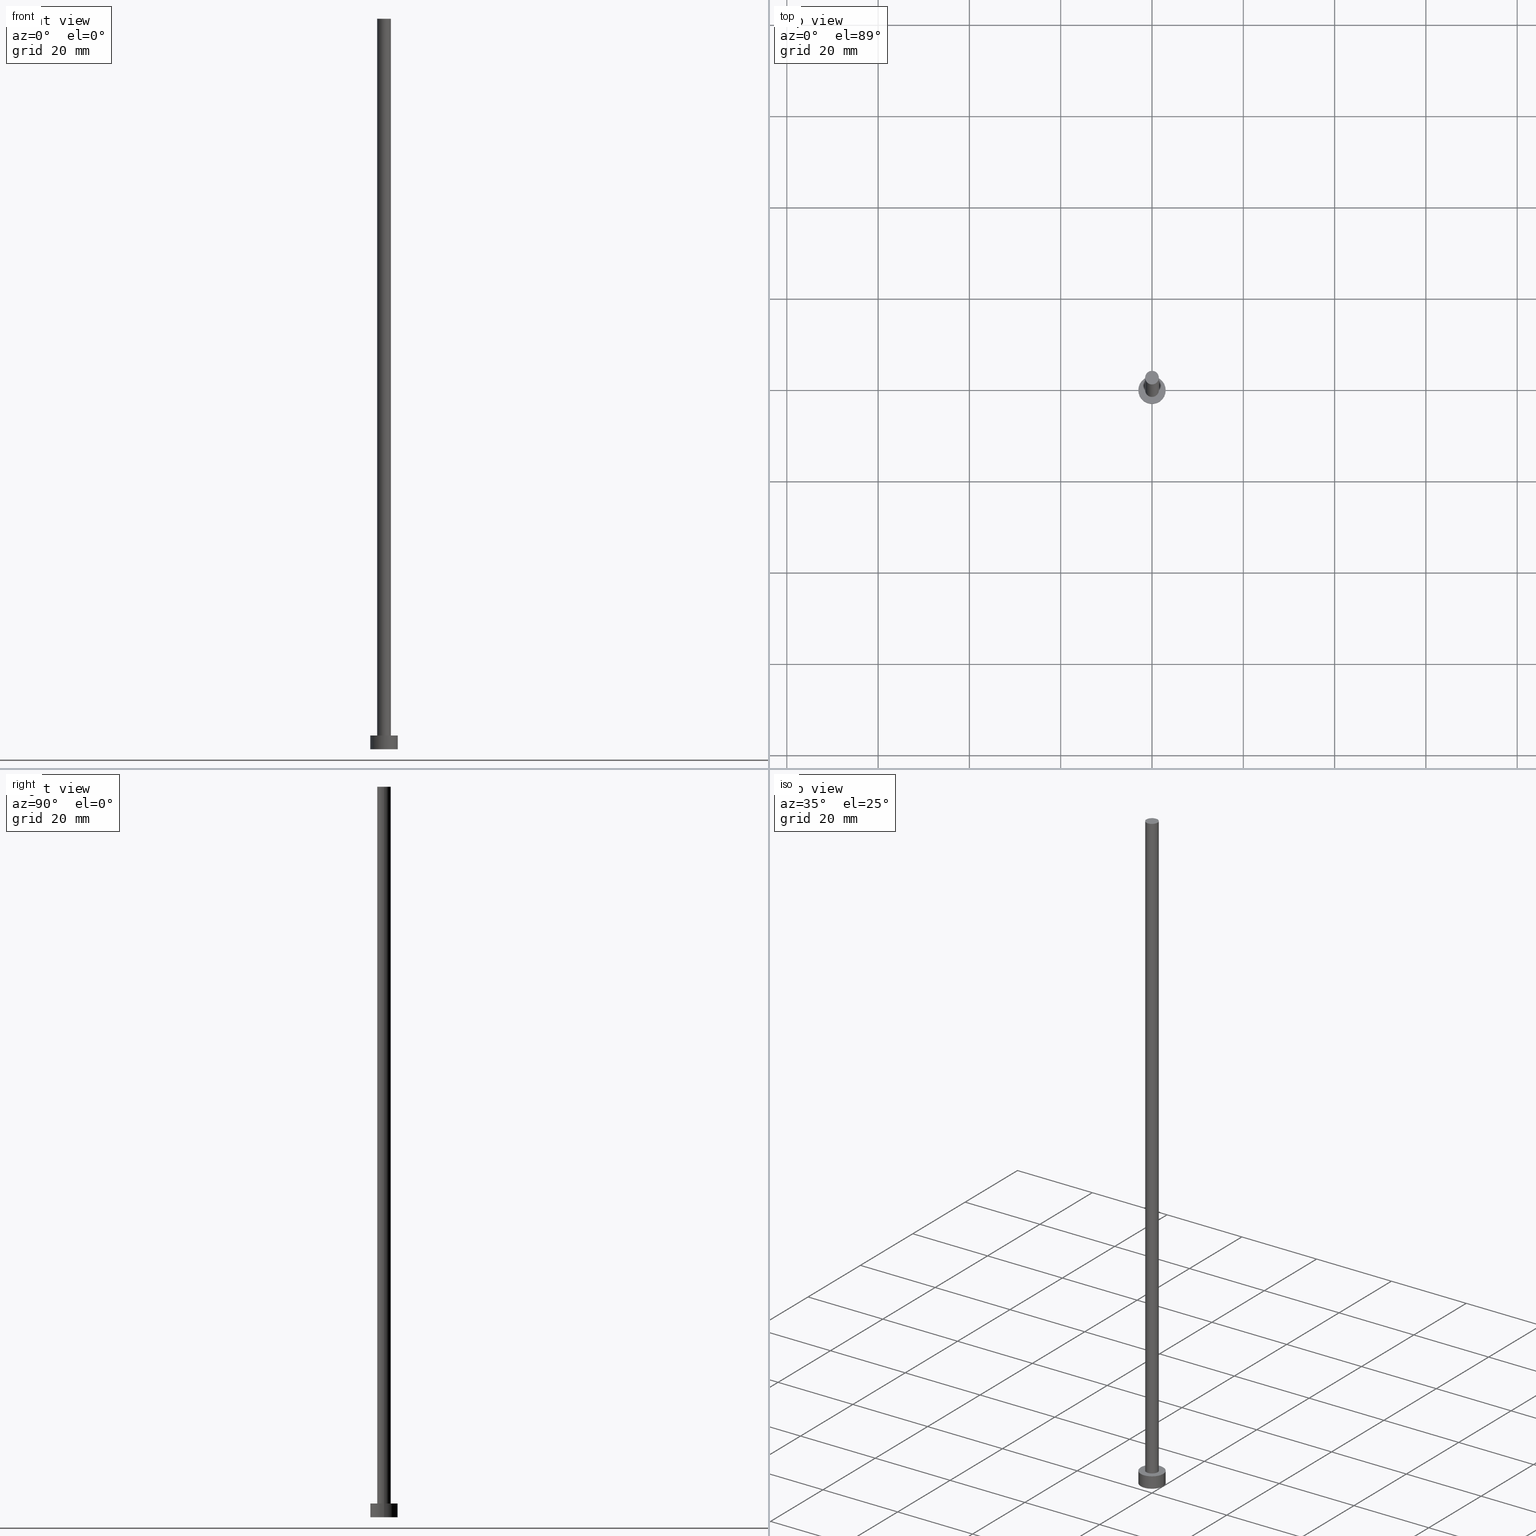
[diagram: canonical four-view strip — front | top / right | iso, engineering-drawing reading convention]
A machine part, canonical four-view strip (front | top / right | iso — engineering-drawing reading convention). The complete STEP part file that produces these views, byte-faithful:
ISO-10303-21;
HEADER;
FILE_DESCRIPTION (( 'STEP AP203' ),
    '1' );
FILE_NAME ('cdf7.STEP',
    '2023-02-13T17:02:47',
    ( '' ),
    ( '' ),
    'SwSTEP 2.0',
    'SolidWorks 2019',
    '' );
FILE_SCHEMA (( 'CONFIG_CONTROL_DESIGN' ));
ENDSEC;

DATA;
#1 = COORDINATED_UNIVERSAL_TIME_OFFSET ( 1, 0, .AHEAD. ) ;
#2 = DIRECTION ( 'NONE',  ( -1.000000000000000000, 0.000000000000000000, 0.000000000000000000 ) ) ;
#3 = CALENDAR_DATE ( 2023, 13, 2 ) ;
#4 = CARTESIAN_POINT ( 'NONE',  ( 0.000000000000000000, 0.000000000000000000, 160.0000000000000000 ) ) ;
#5 = AXIS2_PLACEMENT_3D ( 'NONE', #162, #208, #60 ) ;
#6 = DIRECTION ( 'NONE',  ( 1.000000000000000000, 0.000000000000000000, 0.000000000000000000 ) ) ;
#7 = CYLINDRICAL_SURFACE ( 'NONE', #25, 1.500000000000000222 ) ;
#8 = SECURITY_CLASSIFICATION ( '', '', #165 ) ;
#9 = ADVANCED_FACE ( 'NONE', ( #73 ), #232, .T. ) ;
#10 = VERTEX_POINT ( 'NONE', #160 ) ;
#11 = SHAPE_DEFINITION_REPRESENTATION ( #206, #193 ) ;
#12 = AXIS2_PLACEMENT_3D ( 'NONE', #28, #126, #79 ) ;
#13 = ORIENTED_EDGE ( 'NONE', *, *, #221, .F. ) ;
#14 = EDGE_CURVE ( 'NONE', #197, #10, #119, .T. ) ;
#15 = CC_DESIGN_SECURITY_CLASSIFICATION ( #8, ( #109 ) ) ;
#16 = ORIENTED_EDGE ( 'NONE', *, *, #20, .T. ) ;
#17 =( LENGTH_UNIT ( ) NAMED_UNIT ( * ) SI_UNIT ( .MILLI., .METRE. ) );
#18 = ORIENTED_EDGE ( 'NONE', *, *, #20, .F. ) ;
#19 = UNCERTAINTY_MEASURE_WITH_UNIT (LENGTH_MEASURE( 1.000000000000000082E-05 ), #17, 'distance_accuracy_value', 'NONE');
#20 = EDGE_CURVE ( 'NONE', #10, #197, #220, .T. ) ;
#21 = PERSON_AND_ORGANIZATION_ROLE ( 'creator' ) ;
#22 = CALENDAR_DATE ( 2023, 13, 2 ) ;
#23 = CARTESIAN_POINT ( 'NONE',  ( 0.000000000000000000, 0.000000000000000000, 3.000000000000000000 ) ) ;
#24 = EDGE_CURVE ( 'NONE', #194, #92, #237, .T. ) ;
#25 = AXIS2_PLACEMENT_3D ( 'NONE', #58, #87, #2 ) ;
#26 = DIRECTION ( 'NONE',  ( -0.000000000000000000, -0.000000000000000000, -1.000000000000000000 ) ) ;
#27 = APPROVAL_ROLE ( '' ) ;
#28 = CARTESIAN_POINT ( 'NONE',  ( 0.000000000000000000, 0.000000000000000000, 0.000000000000000000 ) ) ;
#29 = DIRECTION ( 'NONE',  ( -1.000000000000000000, 0.000000000000000000, 0.000000000000000000 ) ) ;
#30 = LOCAL_TIME ( 18, 2, 47.00000000000000000, #84 ) ;
#31 = ADVANCED_FACE ( 'NONE', ( #255 ), #125, .T. ) ;
#32 =( NAMED_UNIT ( * ) PLANE_ANGLE_UNIT ( ) SI_UNIT ( $, .RADIAN. ) );
#33 =( GEOMETRIC_REPRESENTATION_CONTEXT ( 3 ) GLOBAL_UNCERTAINTY_ASSIGNED_CONTEXT ( ( #19 ) ) GLOBAL_UNIT_ASSIGNED_CONTEXT ( ( #17, #32, #89 ) ) REPRESENTATION_CONTEXT ( 'NONE', 'WORKASPACE' ) );
#34 = ORIENTED_EDGE ( 'NONE', *, *, #163, .F. ) ;
#35 = ORIENTED_EDGE ( 'NONE', *, *, #24, .F. ) ;
#36 = VECTOR ( 'NONE', #101, 1000.000000000000000 ) ;
#37 = APPLICATION_CONTEXT ( 'configuration controlled 3d designs of mechanical parts and assemblies' ) ;
#38 = DIRECTION ( 'NONE',  ( 0.000000000000000000, 0.000000000000000000, 1.000000000000000000 ) ) ;
#39 = DIRECTION ( 'NONE',  ( 1.000000000000000000, 0.000000000000000000, 0.000000000000000000 ) ) ;
#40 = PERSON_AND_ORGANIZATION ( #53, #158 ) ;
#41 = VECTOR ( 'NONE', #166, 1000.000000000000000 ) ;
#42 = PRODUCT_DEFINITION ( 'NEZN�M�', '', #109, #52 ) ;
#43 = CARTESIAN_POINT ( 'NONE',  ( 1.500000000000000222, 1.836970198721030181E-16, 160.0000000000000000 ) ) ;
#44 = CC_DESIGN_APPROVAL ( #198, ( #8 ) ) ;
#45 = CALENDAR_DATE ( 2023, 13, 2 ) ;
#46 = DIRECTION ( 'NONE',  ( 1.000000000000000000, 0.000000000000000000, -0.000000000000000000 ) ) ;
#47 = PLANE ( 'NONE',  #188 ) ;
#48 = EDGE_LOOP ( 'NONE', ( #153, #152, #51, #218 ) ) ;
#49 = DIRECTION ( 'NONE',  ( 1.000000000000000000, 0.000000000000000000, 0.000000000000000000 ) ) ;
#50 = EDGE_LOOP ( 'NONE', ( #95, #93, #233, #134 ) ) ;
#51 = ORIENTED_EDGE ( 'NONE', *, *, #67, .T. ) ;
#52 = DESIGN_CONTEXT ( 'detailed design', #116, 'design' ) ;
#53 = PERSON ( 'NEUR�EN�', 'NEUR�EN�', 'NEUR�EN�', ('NEUR�EN�'), ('NEUR�EN�'), ('NEUR�EN�') ) ;
#54 = DIRECTION ( 'NONE',  ( -1.000000000000000000, 0.000000000000000000, 0.000000000000000000 ) ) ;
#55 = PERSON_AND_ORGANIZATION_ROLE ( 'creator' ) ;
#56 = CARTESIAN_POINT ( 'NONE',  ( 0.000000000000000000, 0.000000000000000000, 0.000000000000000000 ) ) ;
#57 = APPROVAL_DATE_TIME ( #108, #159 ) ;
#58 = CARTESIAN_POINT ( 'NONE',  ( 0.000000000000000000, 0.000000000000000000, 160.0000000000000000 ) ) ;
#59 = PERSON_AND_ORGANIZATION ( #53, #158 ) ;
#60 = DIRECTION ( 'NONE',  ( 1.000000000000000000, 0.000000000000000000, 0.000000000000000000 ) ) ;
#61 = APPLICATION_PROTOCOL_DEFINITION ( 'international standard', 'config_control_design', 1994, #116 ) ;
#62 = AXIS2_PLACEMENT_3D ( 'NONE', #174, #74, #49 ) ;
#63 = PLANE ( 'NONE',  #164 ) ;
#64 = CC_DESIGN_APPROVAL ( #150, ( #109 ) ) ;
#65 = CARTESIAN_POINT ( 'NONE',  ( -3.000000000000000444, 0.000000000000000000, 3.000000000000000000 ) ) ;
#66 = VERTEX_POINT ( 'NONE', #100 ) ;
#67 = EDGE_CURVE ( 'NONE', #115, #235, #180, .T. ) ;
#68 = AXIS2_PLACEMENT_3D ( 'NONE', #56, #187, #140 ) ;
#69 = AXIS2_PLACEMENT_3D ( 'NONE', #127, #190, #6 ) ;
#70 = EDGE_LOOP ( 'NONE', ( #18, #133 ) ) ;
#71 = LOCAL_TIME ( 18, 2, 47.00000000000000000, #1 ) ;
#72 = CC_DESIGN_PERSON_AND_ORGANIZATION_ASSIGNMENT ( #168, #243, ( #8 ) ) ;
#73 = FACE_OUTER_BOUND ( 'NONE', #234, .T. ) ;
#74 = DIRECTION ( 'NONE',  ( 0.000000000000000000, 0.000000000000000000, 1.000000000000000000 ) ) ;
#75 = CARTESIAN_POINT ( 'NONE',  ( 0.000000000000000000, 0.000000000000000000, 3.000000000000000000 ) ) ;
#76 = ADVANCED_FACE ( 'NONE', ( #182 ), #47, .F. ) ;
#77 = CARTESIAN_POINT ( 'NONE',  ( -3.000000000000000444, 0.000000000000000000, 3.000000000000000000 ) ) ;
#78 = AXIS2_PLACEMENT_3D ( 'NONE', #136, #94, #253 ) ;
#79 = DIRECTION ( 'NONE',  ( 1.000000000000000000, 0.000000000000000000, 0.000000000000000000 ) ) ;
#80 = CLOSED_SHELL ( 'NONE', ( #128, #31, #156, #236, #76, #9, #99 ) ) ;
#81 = APPROVAL_ROLE ( '' ) ;
#82 = CYLINDRICAL_SURFACE ( 'NONE', #91, 3.000000000000000444 ) ;
#83 = EDGE_CURVE ( 'NONE', #235, #66, #181, .T. ) ;
#84 = COORDINATED_UNIVERSAL_TIME_OFFSET ( 1, 0, .AHEAD. ) ;
#85 = LINE ( 'NONE', #229, #215 ) ;
#86 = PERSON_AND_ORGANIZATION ( #53, #158 ) ;
#87 = DIRECTION ( 'NONE',  ( -0.000000000000000000, -0.000000000000000000, -1.000000000000000000 ) ) ;
#88 = CARTESIAN_POINT ( 'NONE',  ( 1.500000000000000222, 1.836970198721030181E-16, 160.0000000000000000 ) ) ;
#89 =( NAMED_UNIT ( * ) SI_UNIT ( $, .STERADIAN. ) SOLID_ANGLE_UNIT ( ) );
#90 = ORIENTED_EDGE ( 'NONE', *, *, #207, .T. ) ;
#91 = AXIS2_PLACEMENT_3D ( 'NONE', #23, #173, #29 ) ;
#92 = VERTEX_POINT ( 'NONE', #88 ) ;
#93 = ORIENTED_EDGE ( 'NONE', *, *, #202, .T. ) ;
#94 = DIRECTION ( 'NONE',  ( -0.000000000000000000, -0.000000000000000000, -1.000000000000000000 ) ) ;
#95 = ORIENTED_EDGE ( 'NONE', *, *, #252, .F. ) ;
#96 = LOCAL_TIME ( 18, 2, 47.00000000000000000, #192 ) ;
#97 = CARTESIAN_POINT ( 'NONE',  ( 0.000000000000000000, 0.000000000000000000, 0.000000000000000000 ) ) ;
#98 = PRODUCT_RELATED_PRODUCT_CATEGORY ( 'detail', '', ( #179 ) ) ;
#99 = ADVANCED_FACE ( 'NONE', ( #224 ), #104, .T. ) ;
#100 = CARTESIAN_POINT ( 'NONE',  ( 3.000000000000000444, 3.673940397442060361E-16, 0.000000000000000000 ) ) ;
#101 = DIRECTION ( 'NONE',  ( -0.000000000000000000, -0.000000000000000000, -1.000000000000000000 ) ) ;
#102 = CC_DESIGN_DATE_AND_TIME_ASSIGNMENT ( #245, #111, ( #8 ) ) ;
#103 = APPROVAL_STATUS ( 'not_yet_approved' ) ;
#104 = PLANE ( 'NONE',  #107 ) ;
#105 = DATE_AND_TIME ( #22, #30 ) ;
#106 = CARTESIAN_POINT ( 'NONE',  ( 0.000000000000000000, 0.000000000000000000, 0.000000000000000000 ) ) ;
#107 = AXIS2_PLACEMENT_3D ( 'NONE', #4, #214, #185 ) ;
#108 = DATE_AND_TIME ( #3, #71 ) ;
#109 = PRODUCT_DEFINITION_FORMATION_WITH_SPECIFIED_SOURCE ( 'LIBOVOLN�', '', #179, .NOT_KNOWN. ) ;
#110 = CARTESIAN_POINT ( 'NONE',  ( -1.500000000000000222, 0.000000000000000000, 160.0000000000000000 ) ) ;
#111 = DATE_TIME_ROLE ( 'classification_date' ) ;
#112 = DATE_AND_TIME ( #191, #96 ) ;
#113 = VECTOR ( 'NONE', #26, 1000.000000000000000 ) ;
#114 = ORIENTED_EDGE ( 'NONE', *, *, #221, .T. ) ;
#115 = VERTEX_POINT ( 'NONE', #65 ) ;
#116 = APPLICATION_CONTEXT ( 'configuration controlled 3d designs of mechanical parts and assemblies' ) ;
#117 = ORIENTED_EDGE ( 'NONE', *, *, #207, .F. ) ;
#118 = APPLICATION_PROTOCOL_DEFINITION ( 'international standard', 'config_control_design', 1994, #37 ) ;
#119 = CIRCLE ( 'NONE', #154, 1.500000000000000222 ) ;
#120 = LOCAL_TIME ( 18, 2, 47.00000000000000000, #124 ) ;
#121 = CC_DESIGN_PERSON_AND_ORGANIZATION_ASSIGNMENT ( #86, #138, ( #109 ) ) ;
#122 = DIRECTION ( 'NONE',  ( 1.000000000000000000, 0.000000000000000000, 0.000000000000000000 ) ) ;
#123 = MECHANICAL_CONTEXT ( 'NONE', #37, 'mechanical' ) ;
#124 = COORDINATED_UNIVERSAL_TIME_OFFSET ( 1, 0, .AHEAD. ) ;
#125 = CYLINDRICAL_SURFACE ( 'NONE', #145, 3.000000000000000444 ) ;
#126 = DIRECTION ( 'NONE',  ( 0.000000000000000000, 0.000000000000000000, 1.000000000000000000 ) ) ;
#127 = CARTESIAN_POINT ( 'NONE',  ( 0.000000000000000000, 0.000000000000000000, 160.0000000000000000 ) ) ;
#128 = ADVANCED_FACE ( 'NONE', ( #212 ), #7, .T. ) ;
#129 = DATE_AND_TIME ( #45, #120 ) ;
#130 = DIRECTION ( 'NONE',  ( 0.000000000000000000, 0.000000000000000000, 1.000000000000000000 ) ) ;
#131 = DIRECTION ( 'NONE',  ( 1.000000000000000000, 0.000000000000000000, -0.000000000000000000 ) ) ;
#132 = APPROVAL_PERSON_ORGANIZATION ( #59, #198, #27 ) ;
#133 = ORIENTED_EDGE ( 'NONE', *, *, #14, .F. ) ;
#134 = ORIENTED_EDGE ( 'NONE', *, *, #67, .F. ) ;
#135 = ORIENTED_EDGE ( 'NONE', *, *, #196, .T. ) ;
#136 = CARTESIAN_POINT ( 'NONE',  ( 0.000000000000000000, 0.000000000000000000, 160.0000000000000000 ) ) ;
#137 = DIRECTION ( 'NONE',  ( 0.000000000000000000, 0.000000000000000000, 1.000000000000000000 ) ) ;
#138 = PERSON_AND_ORGANIZATION_ROLE ( 'design_supplier' ) ;
#139 = APPROVAL_PERSON_ORGANIZATION ( #40, #159, #81 ) ;
#140 = DIRECTION ( 'NONE',  ( 1.000000000000000000, 0.000000000000000000, 0.000000000000000000 ) ) ;
#141 = COORDINATED_UNIVERSAL_TIME_OFFSET ( 1, 0, .AHEAD. ) ;
#142 = DIRECTION ( 'NONE',  ( -0.000000000000000000, -0.000000000000000000, -1.000000000000000000 ) ) ;
#143 = MANIFOLD_SOLID_BREP ( 'P�idat vysunut�m3', #80 ) ;
#144 = FACE_OUTER_BOUND ( 'NONE', #48, .T. ) ;
#145 = AXIS2_PLACEMENT_3D ( 'NONE', #75, #219, #54 ) ;
#146 = CIRCLE ( 'NONE', #62, 3.000000000000000444 ) ;
#147 = CARTESIAN_POINT ( 'NONE',  ( 0.000000000000000000, 0.000000000000000000, 3.000000000000000000 ) ) ;
#148 = CARTESIAN_POINT ( 'NONE',  ( -1.500000000000000222, 0.000000000000000000, 160.0000000000000000 ) ) ;
#149 = EDGE_LOOP ( 'NONE', ( #250, #34 ) ) ;
#150 = APPROVAL ( #103, 'NEUR�EN�' ) ;
#151 = AXIS2_PLACEMENT_3D ( 'NONE', #205, #155, #203 ) ;
#152 = ORIENTED_EDGE ( 'NONE', *, *, #196, .F. ) ;
#153 = ORIENTED_EDGE ( 'NONE', *, *, #202, .F. ) ;
#154 = AXIS2_PLACEMENT_3D ( 'NONE', #254, #239, #39 ) ;
#155 = DIRECTION ( 'NONE',  ( 0.000000000000000000, 0.000000000000000000, 1.000000000000000000 ) ) ;
#156 = ADVANCED_FACE ( 'NONE', ( #144 ), #82, .T. ) ;
#157 = CIRCLE ( 'NONE', #5, 3.000000000000000444 ) ;
#158 = ORGANIZATION ( 'NEUR�EN�', 'NEUR�EN�', '' ) ;
#159 = APPROVAL ( #241, 'NEUR�EN�' ) ;
#160 = CARTESIAN_POINT ( 'NONE',  ( -1.500000000000000222, 0.000000000000000000, 3.000000000000000000 ) ) ;
#161 = APPROVAL_DATE_TIME ( #105, #150 ) ;
#162 = CARTESIAN_POINT ( 'NONE',  ( 0.000000000000000000, 0.000000000000000000, 3.000000000000000000 ) ) ;
#163 = EDGE_CURVE ( 'NONE', #66, #235, #176, .T. ) ;
#164 = AXIS2_PLACEMENT_3D ( 'NONE', #147, #228, #46 ) ;
#165 = SECURITY_CLASSIFICATION_LEVEL ( 'unclassified' ) ;
#166 = DIRECTION ( 'NONE',  ( -0.000000000000000000, -0.000000000000000000, -1.000000000000000000 ) ) ;
#167 = CC_DESIGN_PERSON_AND_ORGANIZATION_ASSIGNMENT ( #186, #55, ( #109 ) ) ;
#168 = PERSON_AND_ORGANIZATION ( #53, #158 ) ;
#169 = CARTESIAN_POINT ( 'NONE',  ( -3.000000000000000444, 0.000000000000000000, 0.000000000000000000 ) ) ;
#170 = CALENDAR_DATE ( 2023, 13, 2 ) ;
#171 = LINE ( 'NONE', #148, #41 ) ;
#172 = PERSON_AND_ORGANIZATION ( #53, #158 ) ;
#173 = DIRECTION ( 'NONE',  ( -0.000000000000000000, -0.000000000000000000, -1.000000000000000000 ) ) ;
#174 = CARTESIAN_POINT ( 'NONE',  ( 0.000000000000000000, 0.000000000000000000, 3.000000000000000000 ) ) ;
#175 = VERTEX_POINT ( 'NONE', #248 ) ;
#176 = CIRCLE ( 'NONE', #12, 3.000000000000000444 ) ;
#177 = ORIENTED_EDGE ( 'NONE', *, *, #200, .T. ) ;
#178 = ORIENTED_EDGE ( 'NONE', *, *, #200, .F. ) ;
#179 = PRODUCT ( 'cdf7', 'cdf7', '', ( #123 ) ) ;
#180 = LINE ( 'NONE', #77, #36 ) ;
#181 = CIRCLE ( 'NONE', #68, 3.000000000000000444 ) ;
#182 = FACE_OUTER_BOUND ( 'NONE', #149, .T. ) ;
#183 = APPROVAL_PERSON_ORGANIZATION ( #189, #150, #213 ) ;
#184 = CC_DESIGN_DATE_AND_TIME_ASSIGNMENT ( #129, #211, ( #42 ) ) ;
#185 = DIRECTION ( 'NONE',  ( 1.000000000000000000, 0.000000000000000000, -0.000000000000000000 ) ) ;
#186 = PERSON_AND_ORGANIZATION ( #53, #158 ) ;
#187 = DIRECTION ( 'NONE',  ( 0.000000000000000000, 0.000000000000000000, 1.000000000000000000 ) ) ;
#188 = AXIS2_PLACEMENT_3D ( 'NONE', #106, #130, #131 ) ;
#189 = PERSON_AND_ORGANIZATION ( #53, #158 ) ;
#190 = DIRECTION ( 'NONE',  ( 0.000000000000000000, 0.000000000000000000, 1.000000000000000000 ) ) ;
#191 = CALENDAR_DATE ( 2023, 13, 2 ) ;
#192 = COORDINATED_UNIVERSAL_TIME_OFFSET ( 1, 0, .AHEAD. ) ;
#193 = ADVANCED_BREP_SHAPE_REPRESENTATION ( 'cdf7', ( #143, #210 ), #33 ) ;
#194 = VERTEX_POINT ( 'NONE', #110 ) ;
#195 = EDGE_LOOP ( 'NONE', ( #13, #90, #249, #178 ) ) ;
#196 = EDGE_CURVE ( 'NONE', #115, #175, #157, .T. ) ;
#197 = VERTEX_POINT ( 'NONE', #244 ) ;
#198 = APPROVAL ( #227, 'NEUR�EN�' ) ;
#199 = EDGE_LOOP ( 'NONE', ( #230, #114 ) ) ;
#200 = EDGE_CURVE ( 'NONE', #194, #10, #171, .T. ) ;
#201 = CARTESIAN_POINT ( 'NONE',  ( 0.000000000000000000, 0.000000000000000000, 160.0000000000000000 ) ) ;
#202 = EDGE_CURVE ( 'NONE', #175, #66, #85, .T. ) ;
#203 = DIRECTION ( 'NONE',  ( 1.000000000000000000, 0.000000000000000000, 0.000000000000000000 ) ) ;
#204 = CC_DESIGN_PERSON_AND_ORGANIZATION_ASSIGNMENT ( #240, #225, ( #179 ) ) ;
#205 = CARTESIAN_POINT ( 'NONE',  ( 0.000000000000000000, 0.000000000000000000, 3.000000000000000000 ) ) ;
#206 = PRODUCT_DEFINITION_SHAPE ( 'NONE', 'NONE',  #42 ) ;
#207 = EDGE_CURVE ( 'NONE', #92, #197, #226, .T. ) ;
#208 = DIRECTION ( 'NONE',  ( 0.000000000000000000, 0.000000000000000000, 1.000000000000000000 ) ) ;
#209 = AXIS2_PLACEMENT_3D ( 'NONE', #201, #137, #223 ) ;
#210 = AXIS2_PLACEMENT_3D ( 'NONE', #97, #38, #122 ) ;
#211 = DATE_TIME_ROLE ( 'creation_date' ) ;
#212 = FACE_OUTER_BOUND ( 'NONE', #195, .T. ) ;
#213 = APPROVAL_ROLE ( '' ) ;
#214 = DIRECTION ( 'NONE',  ( 0.000000000000000000, 0.000000000000000000, 1.000000000000000000 ) ) ;
#215 = VECTOR ( 'NONE', #142, 1000.000000000000000 ) ;
#216 = ORIENTED_EDGE ( 'NONE', *, *, #252, .T. ) ;
#217 = EDGE_LOOP ( 'NONE', ( #135, #216 ) ) ;
#218 = ORIENTED_EDGE ( 'NONE', *, *, #83, .T. ) ;
#219 = DIRECTION ( 'NONE',  ( -0.000000000000000000, -0.000000000000000000, -1.000000000000000000 ) ) ;
#220 = CIRCLE ( 'NONE', #151, 1.500000000000000222 ) ;
#221 = EDGE_CURVE ( 'NONE', #92, #194, #242, .T. ) ;
#222 = CC_DESIGN_APPROVAL ( #159, ( #42 ) ) ;
#223 = DIRECTION ( 'NONE',  ( 1.000000000000000000, 0.000000000000000000, 0.000000000000000000 ) ) ;
#224 = FACE_OUTER_BOUND ( 'NONE', #199, .T. ) ;
#225 = PERSON_AND_ORGANIZATION_ROLE ( 'design_owner' ) ;
#226 = LINE ( 'NONE', #43, #113 ) ;
#227 = APPROVAL_STATUS ( 'not_yet_approved' ) ;
#228 = DIRECTION ( 'NONE',  ( 0.000000000000000000, 0.000000000000000000, 1.000000000000000000 ) ) ;
#229 = CARTESIAN_POINT ( 'NONE',  ( 3.000000000000000444, 3.673940397442060361E-16, 3.000000000000000000 ) ) ;
#230 = ORIENTED_EDGE ( 'NONE', *, *, #24, .T. ) ;
#231 = CC_DESIGN_PERSON_AND_ORGANIZATION_ASSIGNMENT ( #172, #21, ( #42 ) ) ;
#232 = CYLINDRICAL_SURFACE ( 'NONE', #78, 1.500000000000000222 ) ;
#233 = ORIENTED_EDGE ( 'NONE', *, *, #163, .T. ) ;
#234 = EDGE_LOOP ( 'NONE', ( #117, #35, #177, #16 ) ) ;
#235 = VERTEX_POINT ( 'NONE', #169 ) ;
#236 = ADVANCED_FACE ( 'NONE', ( #247, #246 ), #63, .T. ) ;
#237 = CIRCLE ( 'NONE', #209, 1.500000000000000222 ) ;
#238 = LOCAL_TIME ( 18, 2, 47.00000000000000000, #141 ) ;
#239 = DIRECTION ( 'NONE',  ( 0.000000000000000000, 0.000000000000000000, 1.000000000000000000 ) ) ;
#240 = PERSON_AND_ORGANIZATION ( #53, #158 ) ;
#241 = APPROVAL_STATUS ( 'not_yet_approved' ) ;
#242 = CIRCLE ( 'NONE', #69, 1.500000000000000222 ) ;
#243 = PERSON_AND_ORGANIZATION_ROLE ( 'classification_officer' ) ;
#244 = CARTESIAN_POINT ( 'NONE',  ( 1.500000000000000222, 1.836970198721030181E-16, 3.000000000000000000 ) ) ;
#245 = DATE_AND_TIME ( #170, #238 ) ;
#246 = FACE_OUTER_BOUND ( 'NONE', #217, .T. ) ;
#247 = FACE_BOUND ( 'NONE', #70, .T. ) ;
#248 = CARTESIAN_POINT ( 'NONE',  ( 3.000000000000000444, 3.673940397442060361E-16, 3.000000000000000000 ) ) ;
#249 = ORIENTED_EDGE ( 'NONE', *, *, #14, .T. ) ;
#250 = ORIENTED_EDGE ( 'NONE', *, *, #83, .F. ) ;
#251 = APPROVAL_DATE_TIME ( #112, #198 ) ;
#252 = EDGE_CURVE ( 'NONE', #175, #115, #146, .T. ) ;
#253 = DIRECTION ( 'NONE',  ( -1.000000000000000000, 0.000000000000000000, 0.000000000000000000 ) ) ;
#254 = CARTESIAN_POINT ( 'NONE',  ( 0.000000000000000000, 0.000000000000000000, 3.000000000000000000 ) ) ;
#255 = FACE_OUTER_BOUND ( 'NONE', #50, .T. ) ;
ENDSEC;
END-ISO-10303-21;
